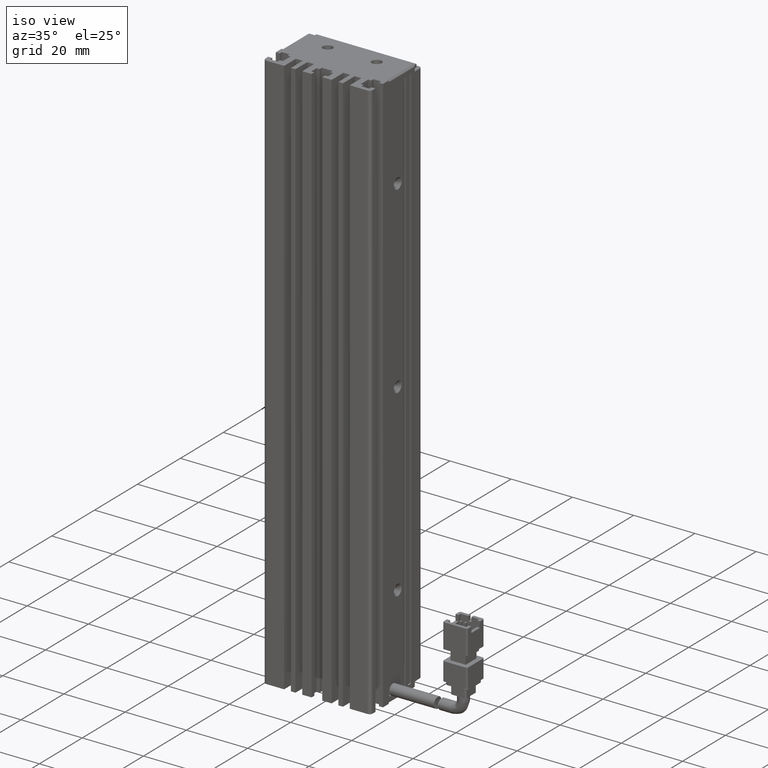
[diagram: clean part render]
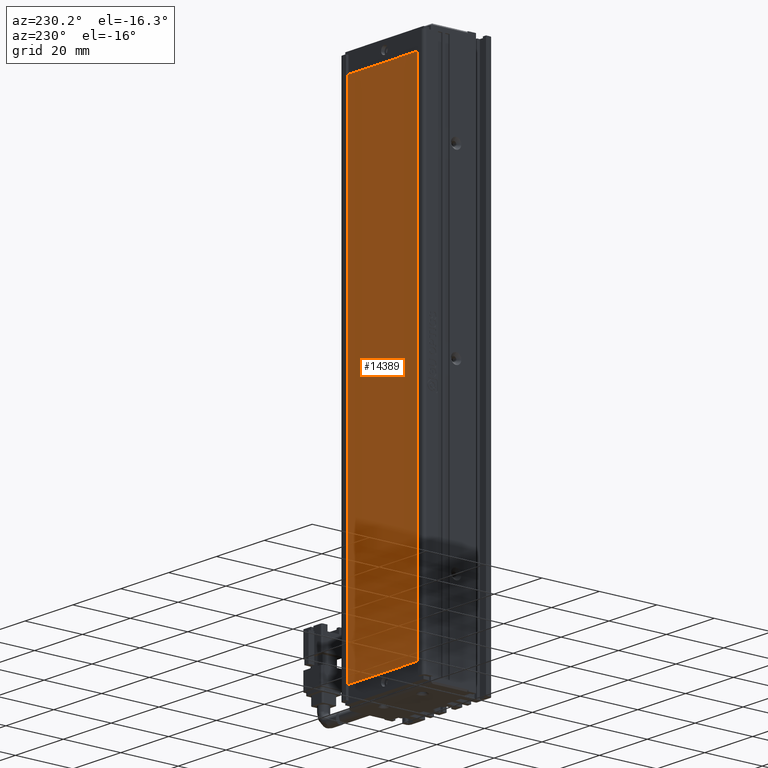
[diagram: tour spotlight — one face highlighted and labeled with its STEP entity id]
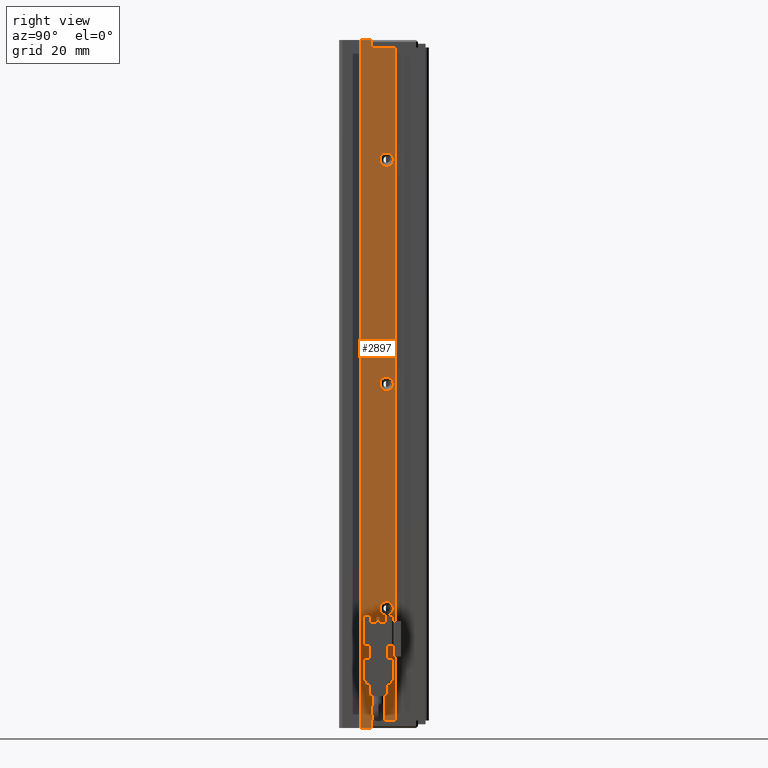
[diagram: tour spotlight — one face highlighted and labeled with its STEP entity id]
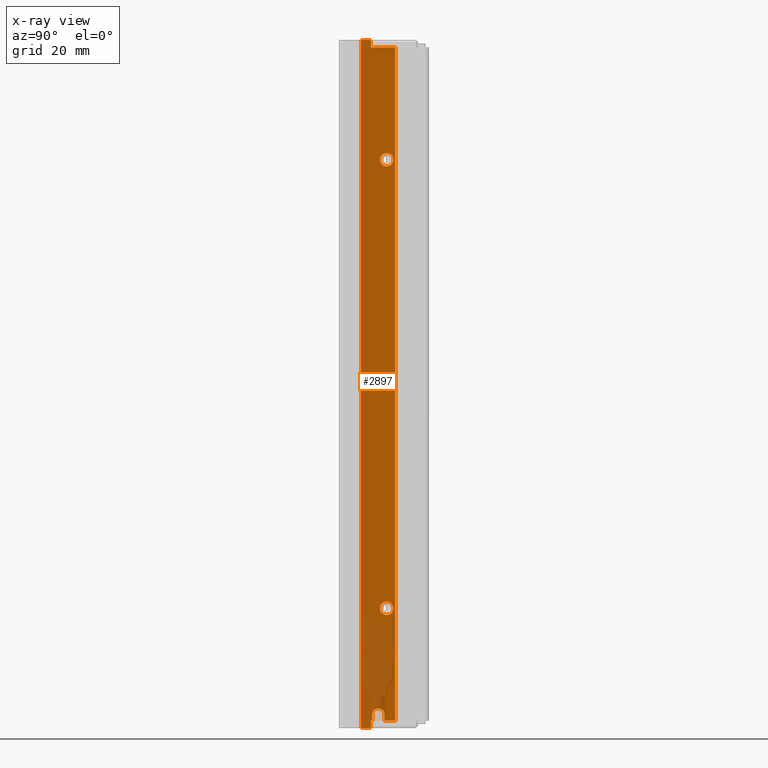
[diagram: x-ray of the same camera — body ghosted, this tour face saturated]
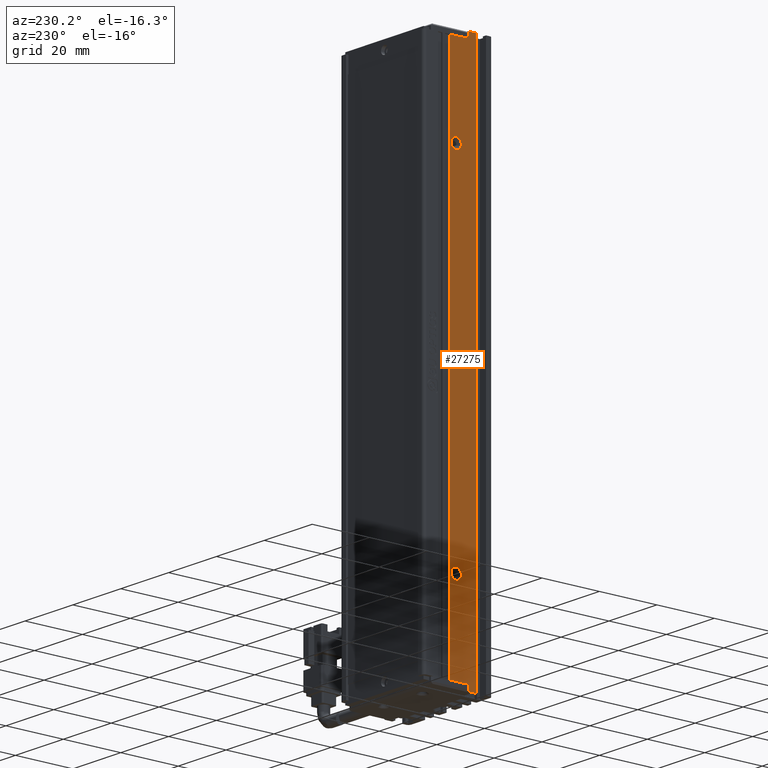
[diagram: tour spotlight — one face highlighted and labeled with its STEP entity id]
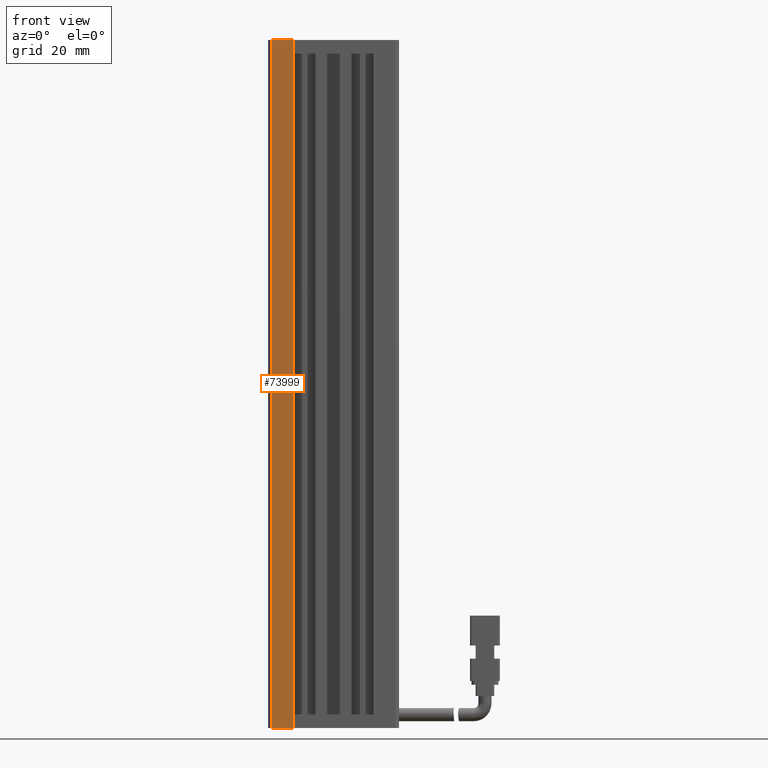
[diagram: tour spotlight — one face highlighted and labeled with its STEP entity id]
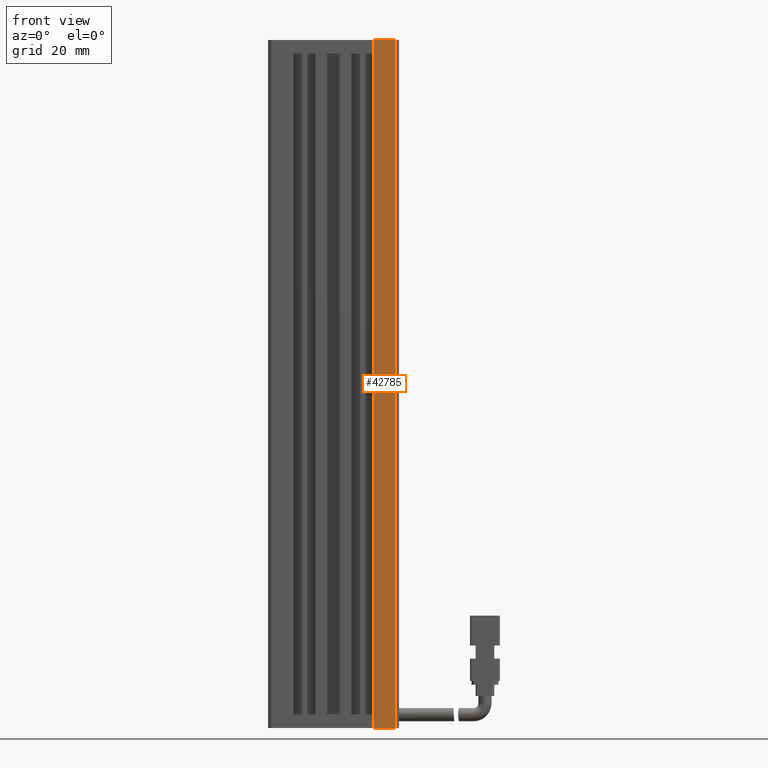
[diagram: tour spotlight — one face highlighted and labeled with its STEP entity id]
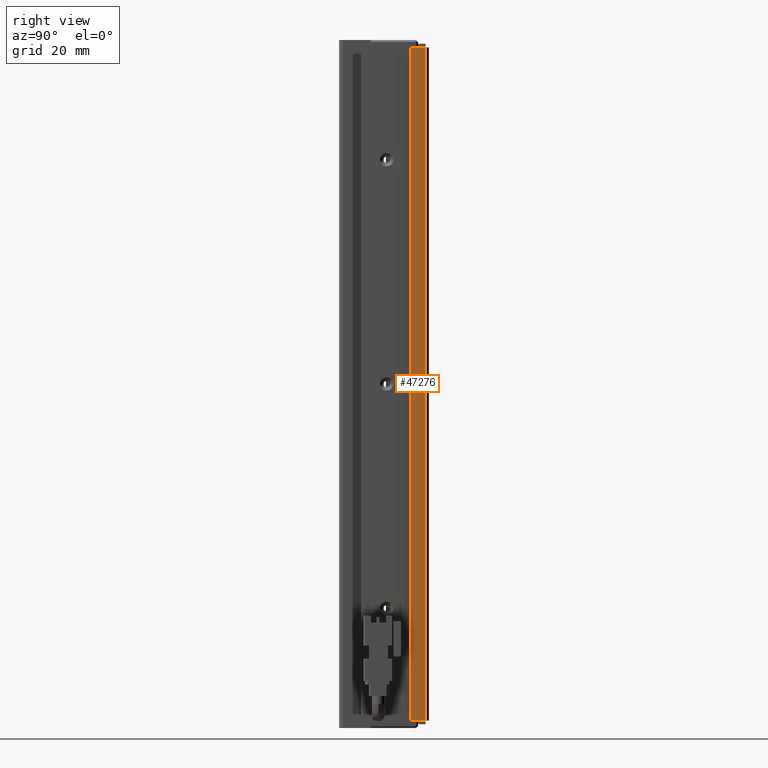
[diagram: tour spotlight — one face highlighted and labeled with its STEP entity id]
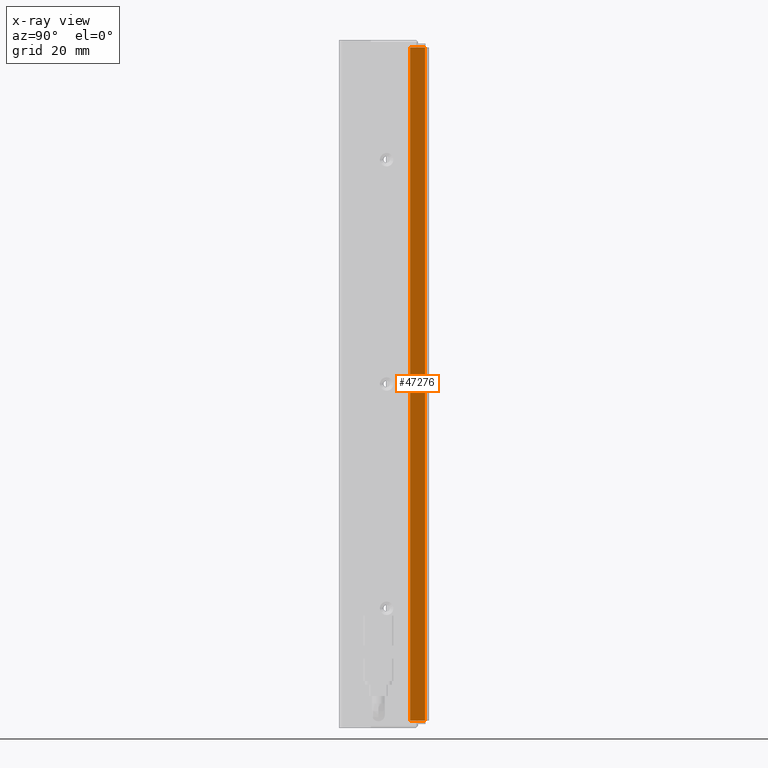
[diagram: x-ray of the same camera — body ghosted, this tour face saturated]
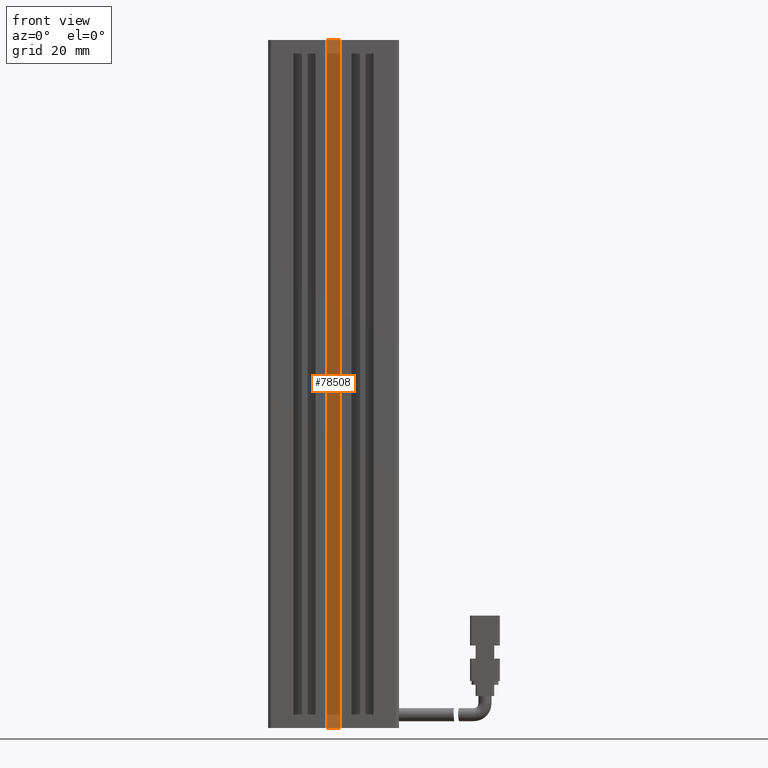
[diagram: tour spotlight — one face highlighted and labeled with its STEP entity id]
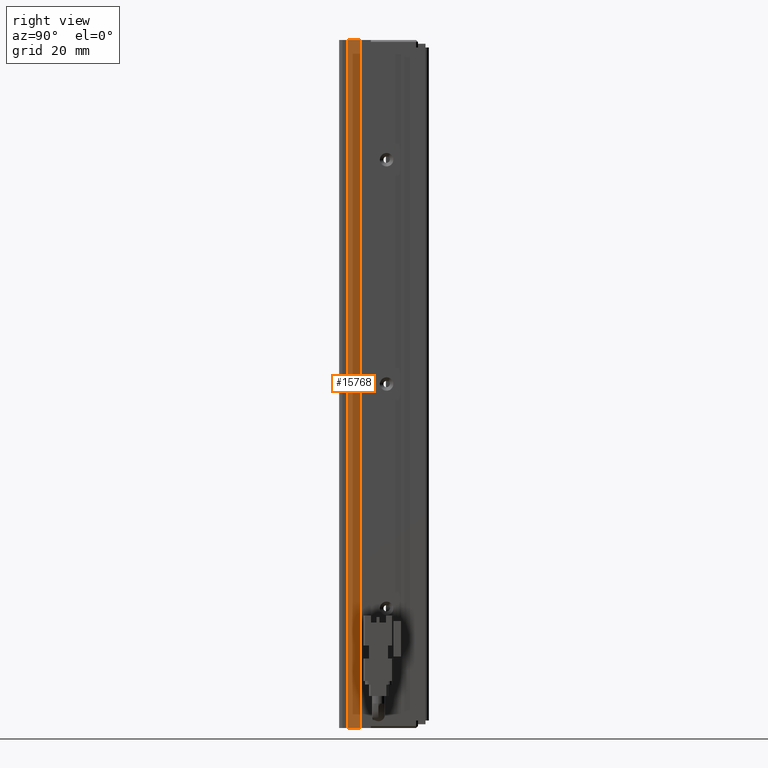
[diagram: tour spotlight — one face highlighted and labeled with its STEP entity id]
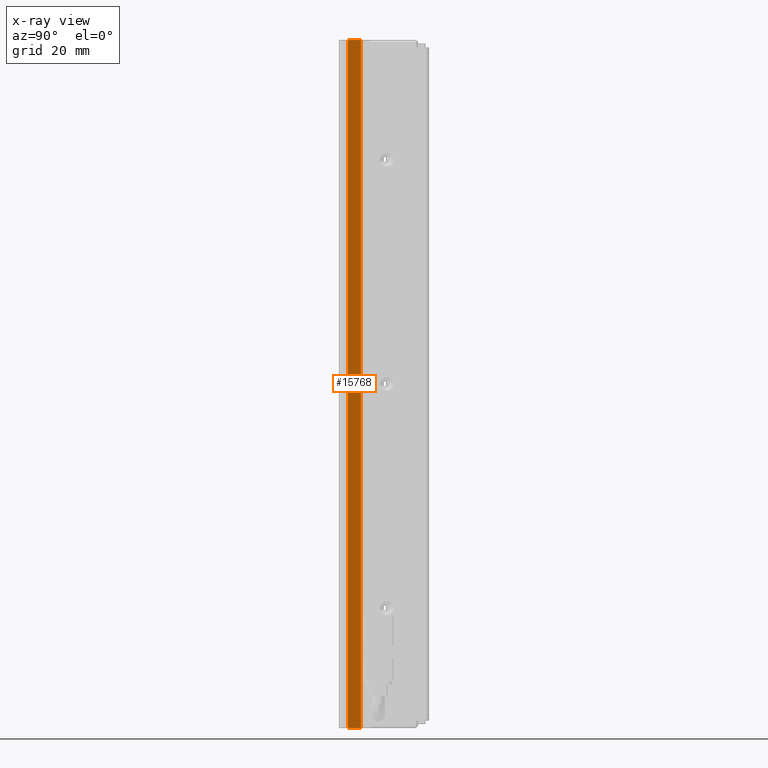
[diagram: x-ray of the same camera — body ghosted, this tour face saturated]
A machine part: a face-by-face anatomy tour. The part has 1721 B-rep faces; the first image is the clean iso view, then the 8 largest visible faces are spotlighted one at a time (largest first), each with its STEP entity span.

Face 1 — auxiliary view, entity #14389. In plain terms, the highlighted planar face has unit normal (0, 1, 0).
Definition (entity closure, byte-faithful):
#7 = VERTEX_POINT ( 'NONE', #62641 ) ;
#2581 = VECTOR ( 'NONE', #45484, 1000.000000000000000 ) ;
#4890 = EDGE_CURVE ( 'NONE', #63451, #13053, #51708, .T. ) ;
#6732 = DIRECTION ( 'NONE',  ( -1.000000000000000000, 0.0000000000000000000, 0.0000000000000000000 ) ) ;
#7250 = EDGE_CURVE ( 'NONE', #76346, #7, #11914, .T. ) ;
#11068 = EDGE_CURVE ( 'NONE', #13053, #76346, #44405, .T. ) ;
#11914 = LINE ( 'NONE', #71828, #16714 ) ;
#12338 = EDGE_LOOP ( 'NONE', ( #42444, #56200, #24368, #36376 ) ) ;
#13053 = VERTEX_POINT ( 'NONE', #51151 ) ;
#13258 = DIRECTION ( 'NONE',  ( 0.0000000000000000000, 1.000000000000000000, 0.0000000000000000000 ) ) ;
#14389 = ADVANCED_FACE ( 'NONE', ( #70884 ), #67704, .T. ) ;
#16714 = VECTOR ( 'NONE', #59011, 1000.000000000000000 ) ;
#18793 = CARTESIAN_POINT ( 'NONE',  ( 55.93512251846632900, 34.29073232304837400, -200.5341530923726600 ) ) ;
#23612 = DIRECTION ( 'NONE',  ( 0.0000000000000000000, 0.0000000000000000000, -1.000000000000000000 ) ) ;
#24368 = ORIENTED_EDGE ( 'NONE', *, *, #11068, .T. ) ;
#28771 = LINE ( 'NONE', #35042, #71507 ) ;
#32288 = CARTESIAN_POINT ( 'NONE',  ( 25.93512251846632900, 34.29073232304837400, -200.5341530923726600 ) ) ;
#35042 = CARTESIAN_POINT ( 'NONE',  ( 55.93512251846632900, 34.29073232304837400, -30.53415309237264500 ) ) ;
#36376 = ORIENTED_EDGE ( 'NONE', *, *, #7250, .T. ) ;
#38585 = EDGE_CURVE ( 'NONE', #7, #63451, #28771, .T. ) ;
#42444 = ORIENTED_EDGE ( 'NONE', *, *, #38585, .T. ) ;
#42675 = AXIS2_PLACEMENT_3D ( 'NONE', #44016, #13258, #67441 ) ;
#44016 = CARTESIAN_POINT ( 'NONE',  ( 0.0000000000000000000, 34.29073232304837400, 0.0000000000000000000 ) ) ;
#44405 = LINE ( 'NONE', #32288, #2581 ) ;
#45484 = DIRECTION ( 'NONE',  ( 1.224510688924804800E-016, 0.0000000000000000000, 1.000000000000000000 ) ) ;
#51151 = CARTESIAN_POINT ( 'NONE',  ( 25.93512251846632900, 34.29073232304837400, -200.5341530923726600 ) ) ;
#51708 = LINE ( 'NONE', #73195, #52603 ) ;
#52603 = VECTOR ( 'NONE', #6732, 1000.000000000000000 ) ;
#56200 = ORIENTED_EDGE ( 'NONE', *, *, #4890, .T. ) ;
#59011 = DIRECTION ( 'NONE',  ( 1.000000000000000000, 0.0000000000000000000, 0.0000000000000000000 ) ) ;
#62641 = CARTESIAN_POINT ( 'NONE',  ( 55.93512251846632900, 34.29073232304837400, -30.53415309237264500 ) ) ;
#63451 = VERTEX_POINT ( 'NONE', #18793 ) ;
#67441 = DIRECTION ( 'NONE',  ( 0.0000000000000000000, -0.0000000000000000000, 1.000000000000000000 ) ) ;
#67704 = PLANE ( 'NONE',  #42675 ) ;
#70884 = FACE_OUTER_BOUND ( 'NONE', #12338, .T. ) ;
#71507 = VECTOR ( 'NONE', #23612, 1000.000000000000000 ) ;
#71828 = CARTESIAN_POINT ( 'NONE',  ( 25.93512251846635100, 34.29073232304837400, -30.53415309237264500 ) ) ;
#73195 = CARTESIAN_POINT ( 'NONE',  ( 55.93512251846632900, 34.29073232304837400, -200.5341530923726600 ) ) ;
#75505 = CARTESIAN_POINT ( 'NONE',  ( 25.93512251846635100, 34.29073232304837400, -30.53415309237264500 ) ) ;
#76346 = VERTEX_POINT ( 'NONE', #75505 ) ;

Face 2 — right view, entity #2897. An x-ray twin of the same camera follows (body ghosted, this face saturated) — the face is partly hidden behind the body. In plain terms, the highlighted planar face has unit normal (-1, 0, 0).
Definition (entity closure, byte-faithful):
#251 = DIRECTION ( 'NONE',  ( 0.0000000000000000000, 0.0000000000000000000, -1.000000000000000000 ) ) ;
#564 = ORIENTED_EDGE ( 'NONE', *, *, #28350, .F. ) ;
#631 = ORIENTED_EDGE ( 'NONE', *, *, #3620, .F. ) ;
#1348 = CIRCLE ( 'NONE', #20637, 1.800000000005186300 ) ;
#2093 = EDGE_CURVE ( 'NONE', #59722, #43123, #60173, .T. ) ;
#2241 = CARTESIAN_POINT ( 'NONE',  ( 58.42537974681950900, 23.69073232304836900, -175.0000000000000000 ) ) ;
#2434 = EDGE_CURVE ( 'NONE', #71593, #16901, #72501, .T. ) ;
#2443 = ORIENTED_EDGE ( 'NONE', *, *, #64935, .T. ) ;
#2553 = CARTESIAN_POINT ( 'NONE',  ( 58.42537974683542500, 16.79073232304836700, -23.00000000000000700 ) ) ;
#2897 = ADVANCED_FACE ( 'NONE', ( #70421, #18169, #28592, #31451 ), #73813, .F. ) ;
#3620 = EDGE_CURVE ( 'NONE', #15097, #33271, #46425, .T. ) ;
#3656 = AXIS2_PLACEMENT_3D ( 'NONE', #7071, #6799, #19338 ) ;
#3726 = LINE ( 'NONE', #20625, #47541 ) ;
#4081 = VERTEX_POINT ( 'NONE', #49913 ) ;
#4729 = ORIENTED_EDGE ( 'NONE', *, *, #42695, .F. ) ;
#4811 = CIRCLE ( 'NONE', #30026, 1.800000000059753800 ) ;
#5188 = VECTOR ( 'NONE', #74916, 1000.000000000000000 ) ;
#5817 = DIRECTION ( 'NONE',  ( -0.0000000000000000000, -1.000000000000000000, 0.0000000000000000000 ) ) ;
#6799 = DIRECTION ( 'NONE',  ( 1.000000000000000000, 0.0000000000000000000, 0.0000000000000000000 ) ) ;
#7071 = CARTESIAN_POINT ( 'NONE',  ( 58.42537974687635200, 23.69073232304837300, -115.0000000000000000 ) ) ;
#7160 = ORIENTED_EDGE ( 'NONE', *, *, #2434, .F. ) ;
#7172 = CARTESIAN_POINT ( 'NONE',  ( 58.42537974683542500, 25.99073232304837700, -205.0000000000000300 ) ) ;
#8475 = CARTESIAN_POINT ( 'NONE',  ( 58.42537974683542500, 7.083797468354437600, -23.00000000000000700 ) ) ;
#9095 = ORIENTED_EDGE ( 'NONE', *, *, #44246, .F. ) ;
#9225 = LINE ( 'NONE', #13262, #18795 ) ;
#9258 = VERTEX_POINT ( 'NONE', #16303 ) ;
#9786 = CARTESIAN_POINT ( 'NONE',  ( 58.42537974681950900, 23.69073232304836900, -53.19999999999937000 ) ) ;
#10251 = VERTEX_POINT ( 'NONE', #29464 ) ;
#10811 = ORIENTED_EDGE ( 'NONE', *, *, #24061, .F. ) ;
#11846 = DIRECTION ( 'NONE',  ( 0.0000000000000000000, 1.000000000000000000, 0.0000000000000000000 ) ) ;
#13025 = DIRECTION ( 'NONE',  ( 1.000000000000000000, 0.0000000000000000000, 0.0000000000000000000 ) ) ;
#13262 = CARTESIAN_POINT ( 'NONE',  ( 58.42537974683542500, 7.083797468354437600, -207.0000000000000300 ) ) ;
#13493 = AXIS2_PLACEMENT_3D ( 'NONE', #60537, #42491, #24203 ) ;
#14190 = AXIS2_PLACEMENT_3D ( 'NONE', #59323, #78029, #11846 ) ;
#15097 = VERTEX_POINT ( 'NONE', #9786 ) ;
#15245 = CARTESIAN_POINT ( 'NONE',  ( 58.42537974687635200, 23.69073232304837300, -115.0000000000000000 ) ) ;
#15519 = EDGE_LOOP ( 'NONE', ( #2443, #564, #66217, #26166, #63542, #27984, #39205, #77213, #7160, #10811, #60608, #30004 ) ) ;
#16092 = VECTOR ( 'NONE', #23079, 1000.000000000000000 ) ;
#16303 = CARTESIAN_POINT ( 'NONE',  ( 58.42537974687635200, 23.69073232304837300, -116.8000000000597500 ) ) ;
#16901 = VERTEX_POINT ( 'NONE', #50980 ) ;
#17122 = LINE ( 'NONE', #49502, #77979 ) ;
#18169 = FACE_BOUND ( 'NONE', #40302, .T. ) ;
#18795 = VECTOR ( 'NONE', #36918, 1000.000000000000000 ) ;
#19277 = DIRECTION ( 'NONE',  ( 0.0000000000000000000, 1.000000000000000000, -0.0000000000000000000 ) ) ;
#19338 = DIRECTION ( 'NONE',  ( 0.0000000000000000000, 0.0000000000000000000, -1.000000000000000000 ) ) ;
#20395 = DIRECTION ( 'NONE',  ( 0.0000000000000000000, 0.0000000000000000000, 1.000000000000000000 ) ) ;
#20625 = CARTESIAN_POINT ( 'NONE',  ( 58.42537974683542500, 25.99073232304837700, -23.00000000000000700 ) ) ;
#20637 = AXIS2_PLACEMENT_3D ( 'NONE', #2241, #57236, #20908 ) ;
#20798 = EDGE_LOOP ( 'NONE', ( #52617, #631 ) ) ;
#20854 = VERTEX_POINT ( 'NONE', #61219 ) ;
#20908 = DIRECTION ( 'NONE',  ( 0.0000000000000000000, 0.0000000000000000000, -1.000000000000000000 ) ) ;
#23079 = DIRECTION ( 'NONE',  ( 0.0000000000000000000, 1.000000000000000000, -0.0000000000000000000 ) ) ;
#23331 = VERTEX_POINT ( 'NONE', #47872 ) ;
#23512 = AXIS2_PLACEMENT_3D ( 'NONE', #74854, #50642, #20395 ) ;
#23661 = EDGE_LOOP ( 'NONE', ( #9095, #66378 ) ) ;
#24061 = EDGE_CURVE ( 'NONE', #37419, #71593, #9225, .T. ) ;
#24203 = DIRECTION ( 'NONE',  ( 0.0000000000000000000, 0.0000000000000000000, -1.000000000000000000 ) ) ;
#24665 = LINE ( 'NONE', #77541, #45501 ) ;
#25318 = EDGE_CURVE ( 'NONE', #23331, #54651, #72889, .T. ) ;
#26166 = ORIENTED_EDGE ( 'NONE', *, *, #2093, .F. ) ;
#26711 = EDGE_CURVE ( 'NONE', #10251, #43123, #53402, .T. ) ;
#27263 = LINE ( 'NONE', #32427, #5188 ) ;
#27960 = CARTESIAN_POINT ( 'NONE',  ( 58.42537974681950900, 23.69073232304836900, -55.00000000000000700 ) ) ;
#27984 = ORIENTED_EDGE ( 'NONE', *, *, #30107, .F. ) ;
#28350 = EDGE_CURVE ( 'NONE', #10251, #29497, #50916, .T. ) ;
#28592 = FACE_OUTER_BOUND ( 'NONE', #15519, .T. ) ;
#29464 = CARTESIAN_POINT ( 'NONE',  ( 58.42537974683541800, 23.14073232304837200, -203.4500000000000200 ) ) ;
#29497 = VERTEX_POINT ( 'NONE', #73276 ) ;
#30004 = ORIENTED_EDGE ( 'NONE', *, *, #53407, .F. ) ;
#30026 = AXIS2_PLACEMENT_3D ( 'NONE', #15245, #51573, #32806 ) ;
#30107 = EDGE_CURVE ( 'NONE', #23331, #51773, #17122, .T. ) ;
#31451 = FACE_BOUND ( 'NONE', #20798, .T. ) ;
#32427 = CARTESIAN_POINT ( 'NONE',  ( 58.42537974683542500, 19.49073232304837000, -23.00000000000000700 ) ) ;
#32806 = DIRECTION ( 'NONE',  ( 0.0000000000000000000, 0.0000000000000000000, -1.000000000000000000 ) ) ;
#33271 = VERTEX_POINT ( 'NONE', #38255 ) ;
#34715 = CARTESIAN_POINT ( 'NONE',  ( 58.42537974683542500, 19.49073232304837000, -207.0000000000000300 ) ) ;
#35443 = CARTESIAN_POINT ( 'NONE',  ( 58.42537974683542500, 25.99073232304837700, -24.99999999999999300 ) ) ;
#36918 = DIRECTION ( 'NONE',  ( -0.0000000000000000000, -1.000000000000000000, 0.0000000000000000000 ) ) ;
#37419 = VERTEX_POINT ( 'NONE', #34715 ) ;
#38255 = CARTESIAN_POINT ( 'NONE',  ( 58.42537974681950900, 23.69073232304836900, -56.80000000000064400 ) ) ;
#38887 = LINE ( 'NONE', #8475, #16092 ) ;
#39205 = ORIENTED_EDGE ( 'NONE', *, *, #25318, .T. ) ;
#40143 = CARTESIAN_POINT ( 'NONE',  ( 58.42537974683542500, 7.083797468354437600, -205.0000000000000300 ) ) ;
#40302 = EDGE_LOOP ( 'NONE', ( #50710, #4729 ) ) ;
#40542 = VECTOR ( 'NONE', #58278, 1000.000000000000000 ) ;
#40942 = AXIS2_PLACEMENT_3D ( 'NONE', #27960, #70711, #57652 ) ;
#41763 = EDGE_CURVE ( 'NONE', #71873, #4081, #59181, .T. ) ;
#41930 = EDGE_CURVE ( 'NONE', #37419, #53709, #27263, .T. ) ;
#42242 = CARTESIAN_POINT ( 'NONE',  ( 58.42537974683542500, 7.083797468354437600, -205.0000000000000300 ) ) ;
#42491 = DIRECTION ( 'NONE',  ( 1.000000000000000000, 0.0000000000000000000, 0.0000000000000000000 ) ) ;
#42695 = EDGE_CURVE ( 'NONE', #20854, #9258, #77195, .T. ) ;
#42999 = DIRECTION ( 'NONE',  ( -0.0000000000000000000, -2.238352872228144400E-015, -1.000000000000000000 ) ) ;
#43123 = VERTEX_POINT ( 'NONE', #61729 ) ;
#44246 = EDGE_CURVE ( 'NONE', #4081, #71873, #1348, .T. ) ;
#44762 = VERTEX_POINT ( 'NONE', #74237 ) ;
#45129 = CARTESIAN_POINT ( 'NONE',  ( 58.42537974683542500, 19.49073232304837000, -205.0000000000000300 ) ) ;
#45501 = VECTOR ( 'NONE', #54069, 1000.000000000000000 ) ;
#46425 = CIRCLE ( 'NONE', #40942, 1.800000000000634400 ) ;
#46901 = VECTOR ( 'NONE', #5817, 1000.000000000000000 ) ;
#47541 = VECTOR ( 'NONE', #62541, 1000.000000000000000 ) ;
#47872 = CARTESIAN_POINT ( 'NONE',  ( 58.42537974683542500, 19.49073232304837000, -24.99999999999999300 ) ) ;
#49413 = EDGE_CURVE ( 'NONE', #51773, #59722, #3726, .T. ) ;
#49502 = CARTESIAN_POINT ( 'NONE',  ( 58.42537974683542500, 7.083797468354437600, -25.00000000000000700 ) ) ;
#49913 = CARTESIAN_POINT ( 'NONE',  ( 58.42537974681950900, 23.69073232304836900, -176.8000000000051800 ) ) ;
#50642 = DIRECTION ( 'NONE',  ( -1.000000000000000000, 0.0000000000000000000, 0.0000000000000000000 ) ) ;
#50710 = ORIENTED_EDGE ( 'NONE', *, *, #71629, .F. ) ;
#50916 = CIRCLE ( 'NONE', #14190, 1.650000000000002100 ) ;
#50980 = CARTESIAN_POINT ( 'NONE',  ( 58.42537974683542500, 16.79073232304836700, -22.99999999999999300 ) ) ;
#51531 = CARTESIAN_POINT ( 'NONE',  ( 58.42537974683542500, 19.49073232304837000, -23.00000000000000700 ) ) ;
#51573 = DIRECTION ( 'NONE',  ( 1.000000000000000000, 0.0000000000000000000, 0.0000000000000000000 ) ) ;
#51773 = VERTEX_POINT ( 'NONE', #35443 ) ;
#52617 = ORIENTED_EDGE ( 'NONE', *, *, #60072, .F. ) ;
#52842 = LINE ( 'NONE', #40143, #71982 ) ;
#53402 = LINE ( 'NONE', #74093, #73471 ) ;
#53407 = EDGE_CURVE ( 'NONE', #44762, #53709, #52842, .T. ) ;
#53709 = VERTEX_POINT ( 'NONE', #45129 ) ;
#54069 = DIRECTION ( 'NONE',  ( -0.0000000000000000000, -1.119176436114072200E-015, 1.000000000000000000 ) ) ;
#54231 = CIRCLE ( 'NONE', #13493, 1.800000000000634400 ) ;
#54651 = VERTEX_POINT ( 'NONE', #55032 ) ;
#55032 = CARTESIAN_POINT ( 'NONE',  ( 58.42537974683542500, 19.49073232304837000, -22.99999999999999300 ) ) ;
#55187 = CARTESIAN_POINT ( 'NONE',  ( 58.42537974681950900, 23.69073232304836900, -175.0000000000000000 ) ) ;
#56266 = VECTOR ( 'NONE', #75692, 1000.000000000000000 ) ;
#57236 = DIRECTION ( 'NONE',  ( 1.000000000000000000, 0.0000000000000000000, 0.0000000000000000000 ) ) ;
#57652 = DIRECTION ( 'NONE',  ( 0.0000000000000000000, 0.0000000000000000000, -1.000000000000000000 ) ) ;
#58278 = DIRECTION ( 'NONE',  ( -0.0000000000000000000, 0.0000000000000000000, 1.000000000000000000 ) ) ;
#59181 = CIRCLE ( 'NONE', #75910, 1.800000000005186300 ) ;
#59323 = CARTESIAN_POINT ( 'NONE',  ( 58.42537974683541800, 21.49073232304837000, -203.4500000000000200 ) ) ;
#59722 = VERTEX_POINT ( 'NONE', #7172 ) ;
#60072 = EDGE_CURVE ( 'NONE', #33271, #15097, #54231, .T. ) ;
#60173 = LINE ( 'NONE', #42242, #46901 ) ;
#60537 = CARTESIAN_POINT ( 'NONE',  ( 58.42537974681950900, 23.69073232304836900, -55.00000000000000700 ) ) ;
#60608 = ORIENTED_EDGE ( 'NONE', *, *, #41930, .T. ) ;
#61219 = CARTESIAN_POINT ( 'NONE',  ( 58.42537974687635200, 23.69073232304837300, -113.1999999999402500 ) ) ;
#61729 = CARTESIAN_POINT ( 'NONE',  ( 58.42537974683542500, 23.14073232304836500, -205.0000000000000300 ) ) ;
#62541 = DIRECTION ( 'NONE',  ( -0.0000000000000000000, -0.0000000000000000000, -1.000000000000000000 ) ) ;
#63542 = ORIENTED_EDGE ( 'NONE', *, *, #49413, .F. ) ;
#64935 = EDGE_CURVE ( 'NONE', #44762, #29497, #24665, .T. ) ;
#66217 = ORIENTED_EDGE ( 'NONE', *, *, #26711, .T. ) ;
#66378 = ORIENTED_EDGE ( 'NONE', *, *, #41763, .F. ) ;
#66973 = DIRECTION ( 'NONE',  ( -0.0000000000000000000, -1.000000000000000000, 0.0000000000000000000 ) ) ;
#67599 = CARTESIAN_POINT ( 'NONE',  ( 58.42537974683542500, 16.79073232304836700, -207.0000000000000300 ) ) ;
#70421 = FACE_BOUND ( 'NONE', #23661, .T. ) ;
#70711 = DIRECTION ( 'NONE',  ( 1.000000000000000000, 0.0000000000000000000, 0.0000000000000000000 ) ) ;
#70719 = CARTESIAN_POINT ( 'NONE',  ( 58.42537974681950900, 23.69073232304836900, -173.1999999999948200 ) ) ;
#71593 = VERTEX_POINT ( 'NONE', #67599 ) ;
#71629 = EDGE_CURVE ( 'NONE', #9258, #20854, #4811, .T. ) ;
#71873 = VERTEX_POINT ( 'NONE', #70719 ) ;
#71982 = VECTOR ( 'NONE', #66973, 1000.000000000000000 ) ;
#72347 = EDGE_CURVE ( 'NONE', #16901, #54651, #38887, .T. ) ;
#72501 = LINE ( 'NONE', #2553, #56266 ) ;
#72889 = LINE ( 'NONE', #51531, #40542 ) ;
#73276 = CARTESIAN_POINT ( 'NONE',  ( 58.42537974683541800, 19.84073232304836800, -203.4500000000000200 ) ) ;
#73471 = VECTOR ( 'NONE', #42999, 1000.000000000000000 ) ;
#73813 = PLANE ( 'NONE',  #23512 ) ;
#74093 = CARTESIAN_POINT ( 'NONE',  ( 58.42537974683542500, 23.14073232304836500, -205.0000000000000300 ) ) ;
#74237 = CARTESIAN_POINT ( 'NONE',  ( 58.42537974683542500, 19.84073232304836800, -205.0000000000000300 ) ) ;
#74854 = CARTESIAN_POINT ( 'NONE',  ( 58.42537974683542500, 7.083797468354437600, -23.00000000000000700 ) ) ;
#74916 = DIRECTION ( 'NONE',  ( -0.0000000000000000000, 0.0000000000000000000, 1.000000000000000000 ) ) ;
#75692 = DIRECTION ( 'NONE',  ( 0.0000000000000000000, 0.0000000000000000000, 1.000000000000000000 ) ) ;
#75910 = AXIS2_PLACEMENT_3D ( 'NONE', #55187, #13025, #251 ) ;
#77195 = CIRCLE ( 'NONE', #3656, 1.800000000059753800 ) ;
#77213 = ORIENTED_EDGE ( 'NONE', *, *, #72347, .F. ) ;
#77541 = CARTESIAN_POINT ( 'NONE',  ( 58.42537974683542500, 19.84073232304837100, -205.0000000000000300 ) ) ;
#77979 = VECTOR ( 'NONE', #19277, 1000.000000000000000 ) ;
#78029 = DIRECTION ( 'NONE',  ( 1.000000000000000000, 5.687617954022316600E-016, -0.0000000000000000000 ) ) ;

Face 3 — auxiliary view, entity #27275. In plain terms, the highlighted planar face has unit normal (-1, 0, 0).
Definition (entity closure, byte-faithful):
#176 = AXIS2_PLACEMENT_3D ( 'NONE', #58397, #32480, #64548 ) ;
#422 = VECTOR ( 'NONE', #20183, 1000.000000000000000 ) ;
#432 = DIRECTION ( 'NONE',  ( 0.0000000000000000000, 0.0000000000000000000, 1.000000000000000000 ) ) ;
#946 = DIRECTION ( 'NONE',  ( 1.000000000000000000, -0.0000000000000000000, -0.0000000000000000000 ) ) ;
#1747 = CIRCLE ( 'NONE', #72367, 1.800000000000634400 ) ;
#2870 = ORIENTED_EDGE ( 'NONE', *, *, #42226, .T. ) ;
#3771 = CARTESIAN_POINT ( 'NONE',  ( 23.42537974679449800, 23.69073232304837300, -116.8000000000597500 ) ) ;
#4526 = EDGE_LOOP ( 'NONE', ( #18343, #73253 ) ) ;
#4616 = CIRCLE ( 'NONE', #70590, 1.800000000059753800 ) ;
#4780 = AXIS2_PLACEMENT_3D ( 'NONE', #62251, #68388, #62504 ) ;
#5415 = CARTESIAN_POINT ( 'NONE',  ( 23.42537974679449800, 23.69073232304837300, -115.0000000000000000 ) ) ;
#6868 = VECTOR ( 'NONE', #53103, 1000.000000000000000 ) ;
#8093 = CARTESIAN_POINT ( 'NONE',  ( 23.42537974679449800, 23.69073232304837300, -113.1999999999402500 ) ) ;
#8390 = VERTEX_POINT ( 'NONE', #48268 ) ;
#10064 = AXIS2_PLACEMENT_3D ( 'NONE', #5415, #78540, #41309 ) ;
#10584 = CARTESIAN_POINT ( 'NONE',  ( 23.42537974685134100, 23.69073232304836900, -175.0000000000000000 ) ) ;
#10792 = DIRECTION ( 'NONE',  ( 0.0000000000000000000, 1.000000000000000000, -0.0000000000000000000 ) ) ;
#10829 = CARTESIAN_POINT ( 'NONE',  ( 23.42537974683542100, 7.083797468354437600, -207.0000000000000300 ) ) ;
#11491 = FACE_BOUND ( 'NONE', #19138, .T. ) ;
#11568 = CARTESIAN_POINT ( 'NONE',  ( 23.42537974683542500, 19.49073232304836600, -23.00000000000000700 ) ) ;
#12160 = ORIENTED_EDGE ( 'NONE', *, *, #28324, .T. ) ;
#12169 = LINE ( 'NONE', #23966, #72988 ) ;
#12322 = VERTEX_POINT ( 'NONE', #41026 ) ;
#12419 = EDGE_CURVE ( 'NONE', #12697, #47199, #36383, .T. ) ;
#12697 = VERTEX_POINT ( 'NONE', #41664 ) ;
#13436 = PLANE ( 'NONE',  #4780 ) ;
#16269 = CARTESIAN_POINT ( 'NONE',  ( 23.42537974685134100, 23.69073232304836900, -173.1999999999993600 ) ) ;
#16599 = VECTOR ( 'NONE', #63841, 1000.000000000000000 ) ;
#16670 = CARTESIAN_POINT ( 'NONE',  ( 23.42537974685134100, 23.69073232304836900, -176.8000000000006400 ) ) ;
#17322 = VECTOR ( 'NONE', #17414, 1000.000000000000000 ) ;
#17414 = DIRECTION ( 'NONE',  ( 0.0000000000000000000, -0.0000000000000000000, -1.000000000000000000 ) ) ;
#17440 = LINE ( 'NONE', #75780, #38345 ) ;
#17478 = EDGE_CURVE ( 'NONE', #27554, #50896, #57724, .T. ) ;
#18343 = ORIENTED_EDGE ( 'NONE', *, *, #72374, .T. ) ;
#19138 = EDGE_LOOP ( 'NONE', ( #30890, #42168 ) ) ;
#20183 = DIRECTION ( 'NONE',  ( -0.0000000000000000000, -1.000000000000000000, 0.0000000000000000000 ) ) ;
#20434 = CARTESIAN_POINT ( 'NONE',  ( 23.42537974683542100, 19.49073232304836600, -22.99999999999999300 ) ) ;
#21406 = EDGE_CURVE ( 'NONE', #12322, #48542, #50566, .T. ) ;
#21886 = EDGE_CURVE ( 'NONE', #38724, #12697, #32815, .T. ) ;
#22035 = DIRECTION ( 'NONE',  ( 1.000000000000000000, -0.0000000000000000000, -0.0000000000000000000 ) ) ;
#22388 = CARTESIAN_POINT ( 'NONE',  ( 23.42537974683542100, 16.79073232304837400, -22.99999999999999300 ) ) ;
#22427 = EDGE_LOOP ( 'NONE', ( #76120, #51568, #72454, #44912, #23341, #61017, #2870, #39775 ) ) ;
#22811 = DIRECTION ( 'NONE',  ( 0.0000000000000000000, 0.0000000000000000000, 1.000000000000000000 ) ) ;
#23050 = DIRECTION ( 'NONE',  ( -0.0000000000000000000, -1.000000000000000000, 0.0000000000000000000 ) ) ;
#23341 = ORIENTED_EDGE ( 'NONE', *, *, #21886, .T. ) ;
#23434 = CARTESIAN_POINT ( 'NONE',  ( 23.42537974683542500, 34.99073232304837700, -25.00000000000000700 ) ) ;
#23463 = EDGE_CURVE ( 'NONE', #60832, #62267, #4616, .T. ) ;
#23966 = CARTESIAN_POINT ( 'NONE',  ( 23.42537974683542100, 19.49073232304836600, -23.00000000000000700 ) ) ;
#25450 = CARTESIAN_POINT ( 'NONE',  ( 23.42537974685134100, 23.69073232304836900, -55.00000000000000700 ) ) ;
#25813 = CARTESIAN_POINT ( 'NONE',  ( 23.42537974683542100, 19.49073232304836600, -24.99999999999999300 ) ) ;
#26812 = CARTESIAN_POINT ( 'NONE',  ( 23.42537974683542100, 7.083797468354437600, -205.0000000000000300 ) ) ;
#27275 = ADVANCED_FACE ( 'NONE', ( #27642, #28555, #11491, #57969 ), #13436, .T. ) ;
#27554 = VERTEX_POINT ( 'NONE', #22388 ) ;
#27642 = FACE_OUTER_BOUND ( 'NONE', #22427, .T. ) ;
#28324 = EDGE_CURVE ( 'NONE', #62267, #60832, #34779, .T. ) ;
#28555 = FACE_BOUND ( 'NONE', #58376, .T. ) ;
#30890 = ORIENTED_EDGE ( 'NONE', *, *, #21406, .T. ) ;
#31181 = DIRECTION ( 'NONE',  ( 0.0000000000000000000, 0.0000000000000000000, 1.000000000000000000 ) ) ;
#31420 = DIRECTION ( 'NONE',  ( 0.0000000000000000000, 0.0000000000000000000, 1.000000000000000000 ) ) ;
#31985 = VERTEX_POINT ( 'NONE', #37918 ) ;
#32480 = DIRECTION ( 'NONE',  ( 1.000000000000000000, -0.0000000000000000000, -0.0000000000000000000 ) ) ;
#32815 = LINE ( 'NONE', #26812, #422 ) ;
#33478 = VERTEX_POINT ( 'NONE', #16670 ) ;
#34779 = CIRCLE ( 'NONE', #10064, 1.800000000059753800 ) ;
#36383 = LINE ( 'NONE', #11568, #17322 ) ;
#37918 = CARTESIAN_POINT ( 'NONE',  ( 23.42537974683542100, 16.79073232304837400, -207.0000000000000300 ) ) ;
#38345 = VECTOR ( 'NONE', #64852, 1000.000000000000000 ) ;
#38724 = VERTEX_POINT ( 'NONE', #60988 ) ;
#38962 = CARTESIAN_POINT ( 'NONE',  ( 23.42537974683542100, 25.99073232304837300, -23.00000000000000700 ) ) ;
#39775 = ORIENTED_EDGE ( 'NONE', *, *, #55343, .T. ) ;
#40506 = AXIS2_PLACEMENT_3D ( 'NONE', #25450, #946, #432 ) ;
#41026 = CARTESIAN_POINT ( 'NONE',  ( 23.42537974685134100, 23.69073232304836900, -53.19999999999482300 ) ) ;
#41309 = DIRECTION ( 'NONE',  ( 0.0000000000000000000, 0.0000000000000000000, 1.000000000000000000 ) ) ;
#41664 = CARTESIAN_POINT ( 'NONE',  ( 23.42537974683542100, 19.49073232304836600, -205.0000000000000300 ) ) ;
#42168 = ORIENTED_EDGE ( 'NONE', *, *, #52505, .T. ) ;
#42226 = EDGE_CURVE ( 'NONE', #47199, #31985, #70517, .T. ) ;
#42791 = DIRECTION ( 'NONE',  ( 1.000000000000000000, -0.0000000000000000000, -0.0000000000000000000 ) ) ;
#44912 = ORIENTED_EDGE ( 'NONE', *, *, #58866, .T. ) ;
#46198 = VERTEX_POINT ( 'NONE', #16269 ) ;
#47139 = CARTESIAN_POINT ( 'NONE',  ( 23.42537974683542100, 7.083797468354437600, -23.00000000000000700 ) ) ;
#47199 = VERTEX_POINT ( 'NONE', #76411 ) ;
#48268 = CARTESIAN_POINT ( 'NONE',  ( 23.42537974683542100, 25.99073232304837300, -24.99999999999999300 ) ) ;
#48542 = VERTEX_POINT ( 'NONE', #69890 ) ;
#48900 = DIRECTION ( 'NONE',  ( 1.000000000000000000, -0.0000000000000000000, -0.0000000000000000000 ) ) ;
#50566 = CIRCLE ( 'NONE', #176, 1.800000000005186300 ) ;
#50896 = VERTEX_POINT ( 'NONE', #20434 ) ;
#51568 = ORIENTED_EDGE ( 'NONE', *, *, #61583, .T. ) ;
#52505 = EDGE_CURVE ( 'NONE', #48542, #12322, #60726, .T. ) ;
#53103 = DIRECTION ( 'NONE',  ( 0.0000000000000000000, 1.000000000000000000, 0.0000000000000000000 ) ) ;
#53906 = VECTOR ( 'NONE', #10792, 1000.000000000000000 ) ;
#55343 = EDGE_CURVE ( 'NONE', #31985, #27554, #17440, .T. ) ;
#57724 = LINE ( 'NONE', #47139, #53906 ) ;
#57969 = FACE_BOUND ( 'NONE', #4526, .T. ) ;
#58376 = EDGE_LOOP ( 'NONE', ( #12160, #65457 ) ) ;
#58397 = CARTESIAN_POINT ( 'NONE',  ( 23.42537974685134100, 23.69073232304836900, -55.00000000000000700 ) ) ;
#58866 = EDGE_CURVE ( 'NONE', #8390, #38724, #67892, .T. ) ;
#60726 = CIRCLE ( 'NONE', #40506, 1.800000000005186300 ) ;
#60832 = VERTEX_POINT ( 'NONE', #3771 ) ;
#60840 = CARTESIAN_POINT ( 'NONE',  ( 23.42537974685134100, 23.69073232304836900, -175.0000000000000000 ) ) ;
#60988 = CARTESIAN_POINT ( 'NONE',  ( 23.42537974683542100, 25.99073232304837300, -205.0000000000000300 ) ) ;
#61017 = ORIENTED_EDGE ( 'NONE', *, *, #12419, .T. ) ;
#61070 = LINE ( 'NONE', #23434, #6868 ) ;
#61583 = EDGE_CURVE ( 'NONE', #50896, #69496, #12169, .T. ) ;
#62251 = CARTESIAN_POINT ( 'NONE',  ( 23.42537974683542100, 7.083797468354437600, -23.00000000000000700 ) ) ;
#62267 = VERTEX_POINT ( 'NONE', #8093 ) ;
#62504 = DIRECTION ( 'NONE',  ( 0.0000000000000000000, 0.0000000000000000000, 1.000000000000000000 ) ) ;
#62707 = EDGE_CURVE ( 'NONE', #69496, #8390, #61070, .T. ) ;
#63841 = DIRECTION ( 'NONE',  ( -0.0000000000000000000, -0.0000000000000000000, -1.000000000000000000 ) ) ;
#64548 = DIRECTION ( 'NONE',  ( 0.0000000000000000000, 0.0000000000000000000, 1.000000000000000000 ) ) ;
#64852 = DIRECTION ( 'NONE',  ( 0.0000000000000000000, 0.0000000000000000000, 1.000000000000000000 ) ) ;
#65457 = ORIENTED_EDGE ( 'NONE', *, *, #23463, .T. ) ;
#65689 = AXIS2_PLACEMENT_3D ( 'NONE', #60840, #42791, #31420 ) ;
#67538 = CARTESIAN_POINT ( 'NONE',  ( 23.42537974679449800, 23.69073232304837300, -115.0000000000000000 ) ) ;
#67792 = EDGE_CURVE ( 'NONE', #33478, #46198, #75174, .T. ) ;
#67892 = LINE ( 'NONE', #38962, #16599 ) ;
#68388 = DIRECTION ( 'NONE',  ( -1.000000000000000000, 0.0000000000000000000, 0.0000000000000000000 ) ) ;
#69496 = VERTEX_POINT ( 'NONE', #25813 ) ;
#69890 = CARTESIAN_POINT ( 'NONE',  ( 23.42537974685134100, 23.69073232304836900, -56.80000000000519100 ) ) ;
#70517 = LINE ( 'NONE', #10829, #71514 ) ;
#70590 = AXIS2_PLACEMENT_3D ( 'NONE', #67538, #48900, #31181 ) ;
#71514 = VECTOR ( 'NONE', #23050, 1000.000000000000000 ) ;
#72012 = DIRECTION ( 'NONE',  ( 0.0000000000000000000, -0.0000000000000000000, -1.000000000000000000 ) ) ;
#72367 = AXIS2_PLACEMENT_3D ( 'NONE', #10584, #22035, #22811 ) ;
#72374 = EDGE_CURVE ( 'NONE', #46198, #33478, #1747, .T. ) ;
#72454 = ORIENTED_EDGE ( 'NONE', *, *, #62707, .T. ) ;
#72988 = VECTOR ( 'NONE', #72012, 1000.000000000000000 ) ;
#73253 = ORIENTED_EDGE ( 'NONE', *, *, #67792, .T. ) ;
#75174 = CIRCLE ( 'NONE', #65689, 1.800000000000634400 ) ;
#75780 = CARTESIAN_POINT ( 'NONE',  ( 23.42537974683542100, 16.79073232304837400, -23.00000000000000700 ) ) ;
#76120 = ORIENTED_EDGE ( 'NONE', *, *, #17478, .T. ) ;
#76411 = CARTESIAN_POINT ( 'NONE',  ( 23.42537974683542100, 19.49073232304836600, -207.0000000000000300 ) ) ;
#78540 = DIRECTION ( 'NONE',  ( 1.000000000000000000, -0.0000000000000000000, -0.0000000000000000000 ) ) ;

Face 4 — front view, entity #73999. In plain terms, the highlighted planar face has unit normal (0, -1, 0).
Definition (entity closure, byte-faithful):
#273 = CARTESIAN_POINT ( 'NONE',  ( 40.92537974683542500, 10.99073232304837000, -207.0000000000000300 ) ) ;
#3033 = ORIENTED_EDGE ( 'NONE', *, *, #75210, .T. ) ;
#3338 = LINE ( 'NONE', #273, #11054 ) ;
#4752 = CARTESIAN_POINT ( 'NONE',  ( 30.22537974683543300, 10.99073232304837000, -23.00000000000000700 ) ) ;
#6283 = EDGE_CURVE ( 'NONE', #63083, #76662, #14413, .T. ) ;
#7700 = EDGE_CURVE ( 'NONE', #71779, #76662, #40230, .T. ) ;
#10914 = DIRECTION ( 'NONE',  ( 0.0000000000000000000, 0.0000000000000000000, 1.000000000000000000 ) ) ;
#11054 = VECTOR ( 'NONE', #42790, 1000.000000000000000 ) ;
#11470 = EDGE_CURVE ( 'NONE', #14807, #71779, #3338, .T. ) ;
#14413 = LINE ( 'NONE', #59993, #73314 ) ;
#14807 = VERTEX_POINT ( 'NONE', #29144 ) ;
#22371 = CARTESIAN_POINT ( 'NONE',  ( 30.22537974683542900, 10.99073232304837000, -207.0000000000000300 ) ) ;
#26894 = LINE ( 'NONE', #73336, #57240 ) ;
#27785 = ORIENTED_EDGE ( 'NONE', *, *, #6283, .F. ) ;
#29144 = CARTESIAN_POINT ( 'NONE',  ( 24.42537974683542500, 10.99073232304837000, -207.0000000000000300 ) ) ;
#30241 = DIRECTION ( 'NONE',  ( 0.0000000000000000000, -0.0000000000000000000, -1.000000000000000000 ) ) ;
#34198 = DIRECTION ( 'NONE',  ( 0.0000000000000000000, -1.000000000000000000, 0.0000000000000000000 ) ) ;
#38650 = FACE_OUTER_BOUND ( 'NONE', #56824, .T. ) ;
#40230 = LINE ( 'NONE', #4752, #63004 ) ;
#42790 = DIRECTION ( 'NONE',  ( 1.000000000000000000, 0.0000000000000000000, 0.0000000000000000000 ) ) ;
#48045 = CARTESIAN_POINT ( 'NONE',  ( 30.22537974683542900, 10.99073232304837000, -22.99999999999999300 ) ) ;
#56824 = EDGE_LOOP ( 'NONE', ( #27785, #3033, #69006, #57372 ) ) ;
#57240 = VECTOR ( 'NONE', #78670, 1000.000000000000000 ) ;
#57372 = ORIENTED_EDGE ( 'NONE', *, *, #7700, .T. ) ;
#59993 = CARTESIAN_POINT ( 'NONE',  ( 40.92537974683542500, 10.99073232304837000, -23.00000000000000700 ) ) ;
#60448 = CARTESIAN_POINT ( 'NONE',  ( 40.92537974683542500, 10.99073232304837000, -23.00000000000000700 ) ) ;
#63004 = VECTOR ( 'NONE', #10914, 1000.000000000000000 ) ;
#63083 = VERTEX_POINT ( 'NONE', #75958 ) ;
#67129 = AXIS2_PLACEMENT_3D ( 'NONE', #60448, #34198, #30241 ) ;
#69006 = ORIENTED_EDGE ( 'NONE', *, *, #11470, .T. ) ;
#71779 = VERTEX_POINT ( 'NONE', #22371 ) ;
#72527 = DIRECTION ( 'NONE',  ( 1.000000000000000000, 0.0000000000000000000, 0.0000000000000000000 ) ) ;
#73314 = VECTOR ( 'NONE', #72527, 1000.000000000000000 ) ;
#73336 = CARTESIAN_POINT ( 'NONE',  ( 24.42537974683542500, 10.99073232304837000, -23.00000000000000700 ) ) ;
#73999 = ADVANCED_FACE ( 'NONE', ( #38650 ), #78854, .T. ) ;
#75210 = EDGE_CURVE ( 'NONE', #63083, #14807, #26894, .T. ) ;
#75958 = CARTESIAN_POINT ( 'NONE',  ( 24.42537974683542500, 10.99073232304837000, -23.00000000000000700 ) ) ;
#76662 = VERTEX_POINT ( 'NONE', #48045 ) ;
#78670 = DIRECTION ( 'NONE',  ( 0.0000000000000000000, -0.0000000000000000000, -1.000000000000000000 ) ) ;
#78854 = PLANE ( 'NONE',  #67129 ) ;

Face 5 — front view, entity #42785. In plain terms, the highlighted planar face has unit normal (-0, 1, 0).
Definition (entity closure, byte-faithful):
#271 = EDGE_CURVE ( 'NONE', #22850, #11530, #34467, .T. ) ;
#551 = EDGE_LOOP ( 'NONE', ( #58572, #9123, #22891, #65487 ) ) ;
#3180 = AXIS2_PLACEMENT_3D ( 'NONE', #19852, #62301, #74580 ) ;
#4464 = VECTOR ( 'NONE', #47023, 1000.000000000000000 ) ;
#4569 = CARTESIAN_POINT ( 'NONE',  ( 57.42537974683542500, 10.99073232304837500, -23.00000000000000700 ) ) ;
#6897 = CARTESIAN_POINT ( 'NONE',  ( 57.42537974683542500, 10.99073232304837200, -207.0000000000000300 ) ) ;
#7150 = EDGE_CURVE ( 'NONE', #65929, #11530, #46063, .T. ) ;
#9123 = ORIENTED_EDGE ( 'NONE', *, *, #77244, .F. ) ;
#10278 = CARTESIAN_POINT ( 'NONE',  ( 57.42537974683542500, 10.99073232304837200, -23.00000000000000700 ) ) ;
#11530 = VERTEX_POINT ( 'NONE', #6897 ) ;
#16108 = DIRECTION ( 'NONE',  ( 1.000000000000000000, 0.0000000000000000000, 0.0000000000000000000 ) ) ;
#16602 = VECTOR ( 'NONE', #24874, 1000.000000000000000 ) ;
#18339 = VECTOR ( 'NONE', #16108, 1000.000000000000000 ) ;
#19852 = CARTESIAN_POINT ( 'NONE',  ( 40.92537974683542500, 10.99073232304836300, -23.00000000000000700 ) ) ;
#22850 = VERTEX_POINT ( 'NONE', #41344 ) ;
#22891 = ORIENTED_EDGE ( 'NONE', *, *, #58093, .F. ) ;
#24874 = DIRECTION ( 'NONE',  ( 1.000000000000000000, 0.0000000000000000000, 0.0000000000000000000 ) ) ;
#26793 = CARTESIAN_POINT ( 'NONE',  ( 51.62537974683542100, 10.99073232304837000, -22.99999999999999300 ) ) ;
#29983 = VECTOR ( 'NONE', #72364, 1000.000000000000000 ) ;
#34467 = LINE ( 'NONE', #34500, #18339 ) ;
#34500 = CARTESIAN_POINT ( 'NONE',  ( 40.92537974683542500, 10.99073232304837000, -207.0000000000000300 ) ) ;
#36562 = CARTESIAN_POINT ( 'NONE',  ( 40.92537974683542500, 10.99073232304837000, -23.00000000000000700 ) ) ;
#41344 = CARTESIAN_POINT ( 'NONE',  ( 51.62537974683542100, 10.99073232304837000, -207.0000000000000300 ) ) ;
#41462 = CARTESIAN_POINT ( 'NONE',  ( 51.62537974683541400, 10.99073232304837000, -23.00000000000000700 ) ) ;
#42785 = ADVANCED_FACE ( 'NONE', ( #66644 ), #55911, .F. ) ;
#45358 = LINE ( 'NONE', #41462, #4464 ) ;
#46063 = LINE ( 'NONE', #4569, #29983 ) ;
#47023 = DIRECTION ( 'NONE',  ( 0.0000000000000000000, 0.0000000000000000000, 1.000000000000000000 ) ) ;
#55911 = PLANE ( 'NONE',  #3180 ) ;
#58093 = EDGE_CURVE ( 'NONE', #22850, #73839, #45358, .T. ) ;
#58572 = ORIENTED_EDGE ( 'NONE', *, *, #7150, .F. ) ;
#62301 = DIRECTION ( 'NONE',  ( -7.477256361968982400E-016, 1.000000000000000000, 0.0000000000000000000 ) ) ;
#65487 = ORIENTED_EDGE ( 'NONE', *, *, #271, .T. ) ;
#65929 = VERTEX_POINT ( 'NONE', #10278 ) ;
#66644 = FACE_OUTER_BOUND ( 'NONE', #551, .T. ) ;
#72364 = DIRECTION ( 'NONE',  ( -0.0000000000000000000, -0.0000000000000000000, -1.000000000000000000 ) ) ;
#73839 = VERTEX_POINT ( 'NONE', #26793 ) ;
#74580 = DIRECTION ( 'NONE',  ( -1.000000000000000000, -7.477256361968982400E-016, 0.0000000000000000000 ) ) ;
#76425 = LINE ( 'NONE', #36562, #16602 ) ;
#77244 = EDGE_CURVE ( 'NONE', #73839, #65929, #76425, .T. ) ;

Face 6 — right view, entity #47276. An x-ray twin of the same camera follows (body ghosted, this face saturated) — the face is partly hidden behind the body. In plain terms, the highlighted planar face has unit normal (-1, 0, 0).
Definition (entity closure, byte-faithful):
#1041 = CARTESIAN_POINT ( 'NONE',  ( 58.42537974683542500, 29.99073232304837300, -24.99999999999999300 ) ) ;
#2141 = DIRECTION ( 'NONE',  ( -0.0000000000000000000, -1.000000000000000000, -0.0000000000000000000 ) ) ;
#3908 = CARTESIAN_POINT ( 'NONE',  ( 58.42537974683542500, 29.99073232304837300, -205.0000000000000300 ) ) ;
#4902 = VERTEX_POINT ( 'NONE', #37352 ) ;
#7169 = ORIENTED_EDGE ( 'NONE', *, *, #62479, .T. ) ;
#10894 = DIRECTION ( 'NONE',  ( -0.0000000000000000000, -0.0000000000000000000, -1.000000000000000000 ) ) ;
#14076 = VERTEX_POINT ( 'NONE', #3908 ) ;
#16016 = CARTESIAN_POINT ( 'NONE',  ( 58.42537974683542500, 29.99073232304837700, -23.00000000000000700 ) ) ;
#16575 = AXIS2_PLACEMENT_3D ( 'NONE', #71613, #53220, #28339 ) ;
#21083 = CARTESIAN_POINT ( 'NONE',  ( 58.42537974683542500, 34.99073232304837700, -25.00000000000000700 ) ) ;
#22098 = DIRECTION ( 'NONE',  ( 0.0000000000000000000, 0.0000000000000000000, 1.000000000000000000 ) ) ;
#27281 = CARTESIAN_POINT ( 'NONE',  ( 58.42537974683542500, 33.99073232304837700, -25.00000000000000700 ) ) ;
#27508 = VECTOR ( 'NONE', #10894, 1000.000000000000000 ) ;
#28132 = VERTEX_POINT ( 'NONE', #27281 ) ;
#28339 = DIRECTION ( 'NONE',  ( 0.0000000000000000000, 0.0000000000000000000, 1.000000000000000000 ) ) ;
#37034 = DIRECTION ( 'NONE',  ( -0.0000000000000000000, -1.000000000000000000, -0.0000000000000000000 ) ) ;
#37352 = CARTESIAN_POINT ( 'NONE',  ( 58.42537974683542500, 33.99073232304837700, -205.0000000000000300 ) ) ;
#37508 = LINE ( 'NONE', #16016, #59282 ) ;
#39652 = VERTEX_POINT ( 'NONE', #1041 ) ;
#41179 = ORIENTED_EDGE ( 'NONE', *, *, #74782, .F. ) ;
#41576 = EDGE_CURVE ( 'NONE', #14076, #39652, #37508, .T. ) ;
#44137 = CARTESIAN_POINT ( 'NONE',  ( 58.42537974683542500, 34.99073232304837700, -205.0000000000000300 ) ) ;
#47276 = ADVANCED_FACE ( 'NONE', ( #47370 ), #77222, .F. ) ;
#47370 = FACE_OUTER_BOUND ( 'NONE', #61419, .T. ) ;
#47842 = VECTOR ( 'NONE', #37034, 1000.000000000000000 ) ;
#51624 = LINE ( 'NONE', #44137, #47842 ) ;
#53220 = DIRECTION ( 'NONE',  ( -1.000000000000000000, 0.0000000000000000000, 0.0000000000000000000 ) ) ;
#58469 = ORIENTED_EDGE ( 'NONE', *, *, #68269, .F. ) ;
#59282 = VECTOR ( 'NONE', #22098, 1000.000000000000000 ) ;
#61419 = EDGE_LOOP ( 'NONE', ( #7169, #67972, #41179, #58469 ) ) ;
#62479 = EDGE_CURVE ( 'NONE', #28132, #39652, #67817, .T. ) ;
#63034 = VECTOR ( 'NONE', #2141, 1000.000000000000000 ) ;
#67817 = LINE ( 'NONE', #21083, #63034 ) ;
#67972 = ORIENTED_EDGE ( 'NONE', *, *, #41576, .F. ) ;
#68269 = EDGE_CURVE ( 'NONE', #28132, #4902, #75029, .T. ) ;
#71613 = CARTESIAN_POINT ( 'NONE',  ( 58.42537974683542500, 7.083797468354437600, -23.00000000000000700 ) ) ;
#72763 = CARTESIAN_POINT ( 'NONE',  ( 58.42537974683542500, 33.99073232304837700, -23.00000000000000700 ) ) ;
#74782 = EDGE_CURVE ( 'NONE', #4902, #14076, #51624, .T. ) ;
#75029 = LINE ( 'NONE', #72763, #27508 ) ;
#77222 = PLANE ( 'NONE',  #16575 ) ;

Face 7 — front view, entity #78508. In plain terms, the highlighted planar face has unit normal (0, 1, 0).
Definition (entity closure, byte-faithful):
#98 = VERTEX_POINT ( 'NONE', #56786 ) ;
#1384 = ORIENTED_EDGE ( 'NONE', *, *, #11007, .T. ) ;
#2730 = DIRECTION ( 'NONE',  ( 0.0000000000000000000, 1.000000000000000000, 0.0000000000000000000 ) ) ;
#6731 = DIRECTION ( 'NONE',  ( 1.000000000000000000, 0.0000000000000000000, 0.0000000000000000000 ) ) ;
#8889 = CARTESIAN_POINT ( 'NONE',  ( 40.92537974683542500, 15.79073232304837000, -23.00000000000000700 ) ) ;
#11007 = EDGE_CURVE ( 'NONE', #66958, #98, #17843, .T. ) ;
#11551 = ORIENTED_EDGE ( 'NONE', *, *, #53334, .F. ) ;
#17843 = LINE ( 'NONE', #74253, #36909 ) ;
#19843 = EDGE_LOOP ( 'NONE', ( #40404, #69301, #11551, #1384 ) ) ;
#20312 = CARTESIAN_POINT ( 'NONE',  ( 42.67537974683542500, 15.79073232304837000, -23.00000000000000700 ) ) ;
#33586 = EDGE_CURVE ( 'NONE', #71296, #39196, #41086, .T. ) ;
#34028 = LINE ( 'NONE', #46213, #56754 ) ;
#36909 = VECTOR ( 'NONE', #6731, 1000.000000000000000 ) ;
#39196 = VERTEX_POINT ( 'NONE', #20312 ) ;
#39200 = VECTOR ( 'NONE', #72673, 1000.000000000000000 ) ;
#40404 = ORIENTED_EDGE ( 'NONE', *, *, #56913, .F. ) ;
#41086 = LINE ( 'NONE', #41595, #39200 ) ;
#41595 = CARTESIAN_POINT ( 'NONE',  ( 40.92537974683542500, 15.79073232304837000, -23.00000000000000700 ) ) ;
#46213 = CARTESIAN_POINT ( 'NONE',  ( 39.17537974683542500, 15.79073232304837000, -23.00000000000000700 ) ) ;
#51386 = DIRECTION ( 'NONE',  ( 0.0000000000000000000, -0.0000000000000000000, 1.000000000000000000 ) ) ;
#53334 = EDGE_CURVE ( 'NONE', #66958, #71296, #34028, .T. ) ;
#56754 = VECTOR ( 'NONE', #59497, 1000.000000000000000 ) ;
#56786 = CARTESIAN_POINT ( 'NONE',  ( 42.67537974683542500, 15.79073232304837000, -207.0000000000000300 ) ) ;
#56913 = EDGE_CURVE ( 'NONE', #39196, #98, #69077, .T. ) ;
#57880 = FACE_OUTER_BOUND ( 'NONE', #19843, .T. ) ;
#59497 = DIRECTION ( 'NONE',  ( 0.0000000000000000000, -0.0000000000000000000, 1.000000000000000000 ) ) ;
#60028 = CARTESIAN_POINT ( 'NONE',  ( 39.17537974683542500, 15.79073232304837000, -207.0000000000000300 ) ) ;
#60036 = CARTESIAN_POINT ( 'NONE',  ( 42.67537974683542500, 15.79073232304837000, -23.00000000000000700 ) ) ;
#63327 = VECTOR ( 'NONE', #78692, 1000.000000000000000 ) ;
#64109 = PLANE ( 'NONE',  #69103 ) ;
#66958 = VERTEX_POINT ( 'NONE', #60028 ) ;
#69077 = LINE ( 'NONE', #60036, #63327 ) ;
#69103 = AXIS2_PLACEMENT_3D ( 'NONE', #8889, #2730, #51386 ) ;
#69301 = ORIENTED_EDGE ( 'NONE', *, *, #33586, .F. ) ;
#71296 = VERTEX_POINT ( 'NONE', #78026 ) ;
#72673 = DIRECTION ( 'NONE',  ( 1.000000000000000000, 0.0000000000000000000, 0.0000000000000000000 ) ) ;
#74253 = CARTESIAN_POINT ( 'NONE',  ( 40.92537974683542500, 15.79073232304837000, -207.0000000000000300 ) ) ;
#78026 = CARTESIAN_POINT ( 'NONE',  ( 39.17537974683542500, 15.79073232304837000, -23.00000000000000700 ) ) ;
#78508 = ADVANCED_FACE ( 'NONE', ( #57880 ), #64109, .F. ) ;
#78692 = DIRECTION ( 'NONE',  ( -0.0000000000000000000, 0.0000000000000000000, -1.000000000000000000 ) ) ;

Face 8 — right view, entity #15768. An x-ray twin of the same camera follows (body ghosted, this face saturated) — the face is partly hidden behind the body. In plain terms, the highlighted planar face has unit normal (1, 0, -0).
Definition (entity closure, byte-faithful):
#1767 = LINE ( 'NONE', #20473, #64537 ) ;
#7137 = EDGE_CURVE ( 'NONE', #33612, #47364, #66064, .T. ) ;
#10054 = ORIENTED_EDGE ( 'NONE', *, *, #69687, .T. ) ;
#12208 = CARTESIAN_POINT ( 'NONE',  ( 53.62537974683541400, 13.29073232304837200, -23.00000000000000700 ) ) ;
#15768 = ADVANCED_FACE ( 'NONE', ( #66554 ), #45558, .T. ) ;
#17172 = CARTESIAN_POINT ( 'NONE',  ( 53.62537974683541400, 16.79073232304837000, -23.00000000000000700 ) ) ;
#20473 = CARTESIAN_POINT ( 'NONE',  ( 53.62537974683541400, 7.083797468354437600, -23.00000000000000700 ) ) ;
#20673 = VERTEX_POINT ( 'NONE', #54027 ) ;
#22960 = DIRECTION ( 'NONE',  ( 0.0000000000000000000, -0.0000000000000000000, 1.000000000000000000 ) ) ;
#23377 = LINE ( 'NONE', #25625, #60362 ) ;
#25625 = CARTESIAN_POINT ( 'NONE',  ( 53.62537974683541400, 13.29073232304837200, -23.00000000000000700 ) ) ;
#26612 = VERTEX_POINT ( 'NONE', #12208 ) ;
#27024 = CARTESIAN_POINT ( 'NONE',  ( 53.62537974683541400, 7.083797468354437600, -23.00000000000000700 ) ) ;
#27787 = DIRECTION ( 'NONE',  ( 1.000000000000000000, 0.0000000000000000000, -0.0000000000000000000 ) ) ;
#32726 = CARTESIAN_POINT ( 'NONE',  ( 53.62537974683541400, 7.083797468354437600, -207.0000000000000300 ) ) ;
#33612 = VERTEX_POINT ( 'NONE', #78564 ) ;
#33772 = VECTOR ( 'NONE', #22960, 1000.000000000000000 ) ;
#37119 = ORIENTED_EDGE ( 'NONE', *, *, #64642, .F. ) ;
#42664 = AXIS2_PLACEMENT_3D ( 'NONE', #27024, #27787, #51652 ) ;
#45558 = PLANE ( 'NONE',  #42664 ) ;
#45694 = EDGE_LOOP ( 'NONE', ( #37119, #59194, #10054, #58903 ) ) ;
#47364 = VERTEX_POINT ( 'NONE', #17172 ) ;
#51652 = DIRECTION ( 'NONE',  ( -0.0000000000000000000, 0.0000000000000000000, -1.000000000000000000 ) ) ;
#53185 = CARTESIAN_POINT ( 'NONE',  ( 53.62537974683541400, 16.79073232304837000, -23.00000000000000700 ) ) ;
#54027 = CARTESIAN_POINT ( 'NONE',  ( 53.62537974683541400, 13.29073232304837200, -207.0000000000000300 ) ) ;
#54663 = EDGE_CURVE ( 'NONE', #26612, #20673, #23377, .T. ) ;
#56818 = DIRECTION ( 'NONE',  ( 0.0000000000000000000, 1.000000000000000000, -0.0000000000000000000 ) ) ;
#58903 = ORIENTED_EDGE ( 'NONE', *, *, #7137, .T. ) ;
#59194 = ORIENTED_EDGE ( 'NONE', *, *, #54663, .T. ) ;
#60362 = VECTOR ( 'NONE', #73975, 1000.000000000000000 ) ;
#63393 = LINE ( 'NONE', #32726, #64331 ) ;
#63677 = DIRECTION ( 'NONE',  ( 0.0000000000000000000, 1.000000000000000000, -0.0000000000000000000 ) ) ;
#64331 = VECTOR ( 'NONE', #56818, 1000.000000000000000 ) ;
#64537 = VECTOR ( 'NONE', #63677, 1000.000000000000000 ) ;
#64642 = EDGE_CURVE ( 'NONE', #26612, #47364, #1767, .T. ) ;
#66064 = LINE ( 'NONE', #53185, #33772 ) ;
#66554 = FACE_OUTER_BOUND ( 'NONE', #45694, .T. ) ;
#69687 = EDGE_CURVE ( 'NONE', #20673, #33612, #63393, .T. ) ;
#73975 = DIRECTION ( 'NONE',  ( -0.0000000000000000000, 0.0000000000000000000, -1.000000000000000000 ) ) ;
#78564 = CARTESIAN_POINT ( 'NONE',  ( 53.62537974683541400, 16.79073232304837000, -207.0000000000000300 ) ) ;